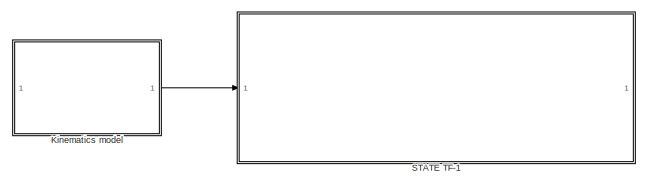
[diagram: root canvas - part 1/4, top right region]
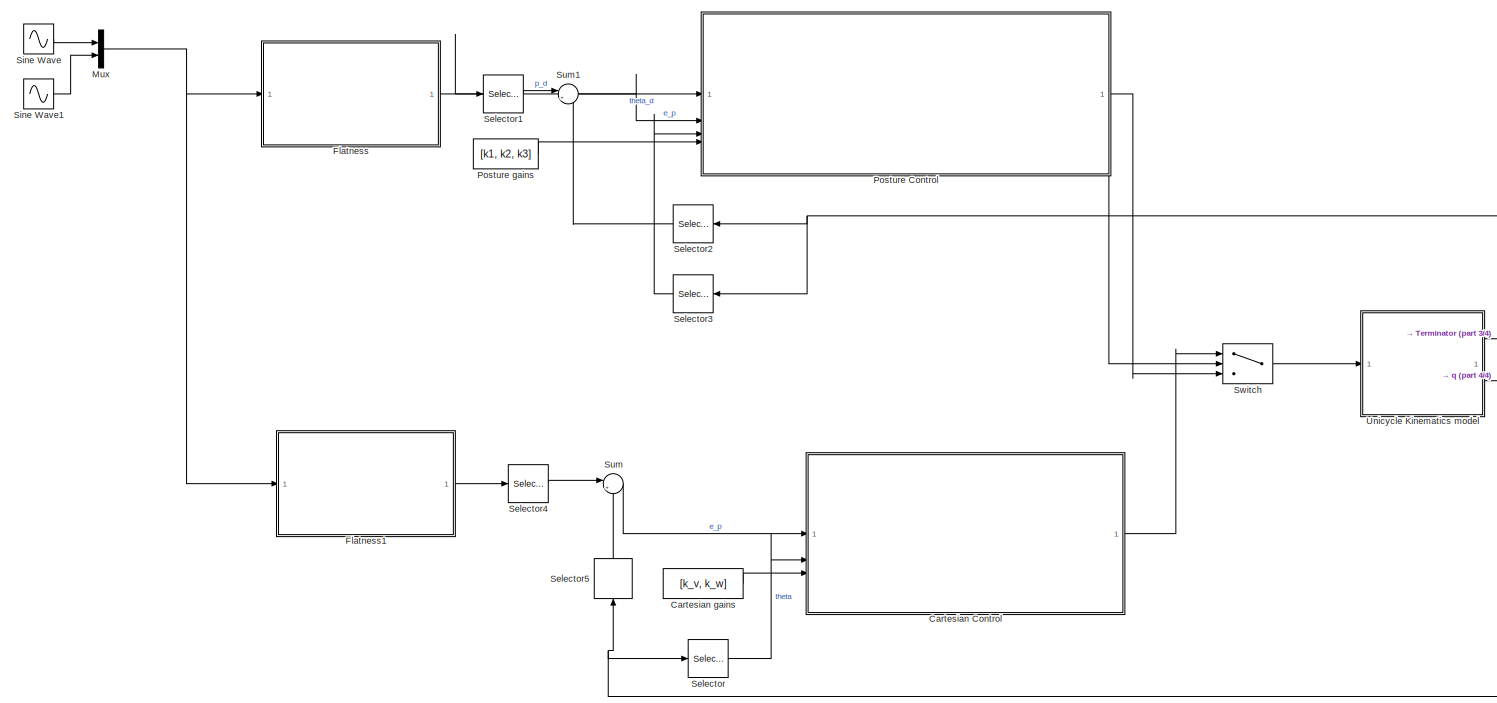
[diagram: root canvas - part 2/4, left side, full height]
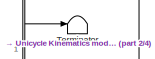
[diagram: root canvas - part 3/4, central region]
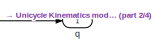
[diagram: root canvas - part 4/4, middle right region]
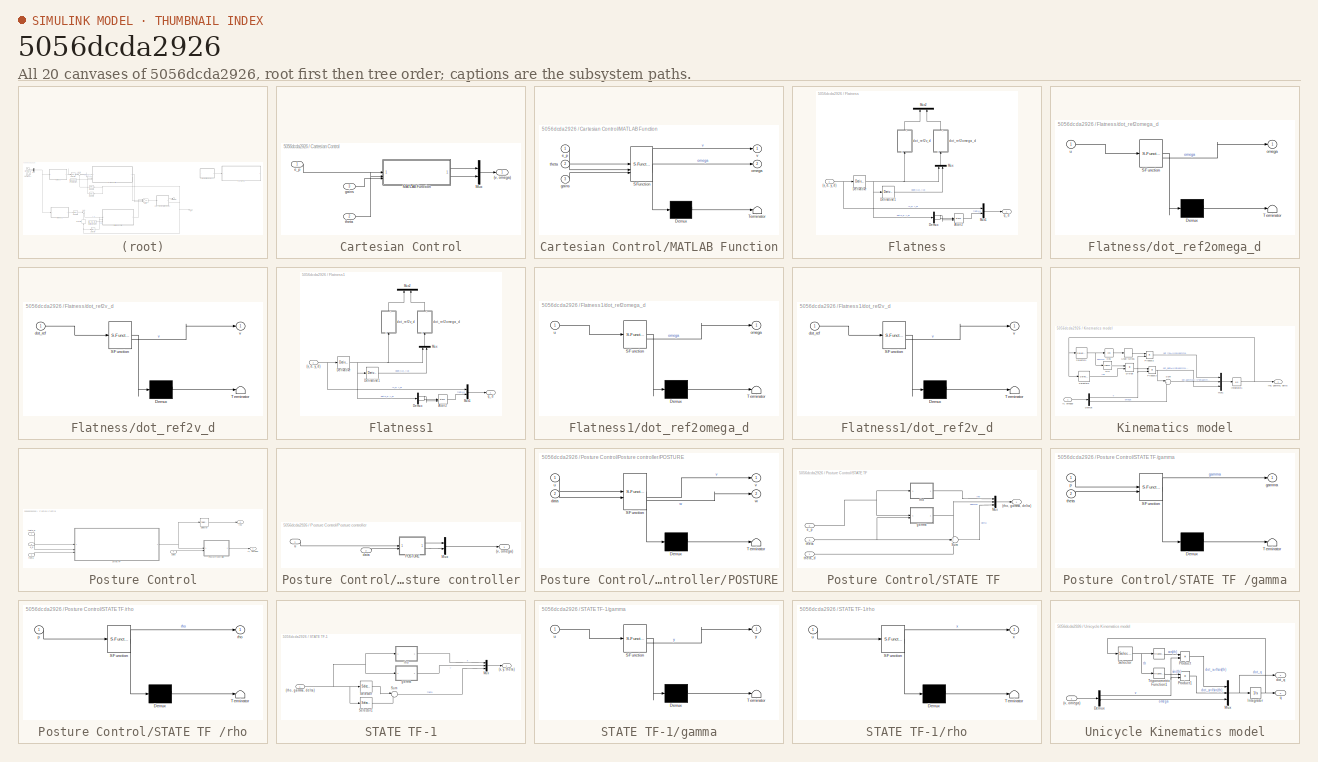
[diagram: thumbnail index - all 20 canvases of the model, root first then tree order]
MODEL slx_5056dcda2926
KIND model
CONFIG AbsTol = auto
CONFIG EnableMultiTasking = off
CONFIG FixedStep = auto
CONFIG MaxStep = auto
CONFIG MinStep = auto
CONFIG RelTol = 1e-3
CONFIG SampleTimeConstraint = Unconstrained
CONFIG SolverName = VariableStepAuto
CONFIG StartTime = 0.0
CONFIG StopTime = 10.0
BLOCK [SubSystem] Cartesian Control
BLOCK [Outport] Cartesian Control/(v, omega)
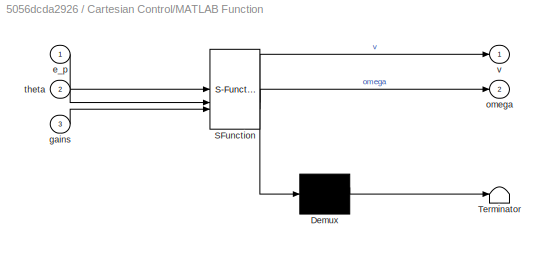
BLOCK [SubSystem] Cartesian Control/MATLAB Function
  ErrorFcn = Stateflow.Translate.translate
  PermitHierarchicalResolution = ExplicitOnly
  SFBlockType = MATLAB Function
  TreatAsAtomicUnit = on
BLOCK [Demux] Cartesian Control/MATLAB Function/ Demux 
  Outputs = 1
BLOCK [S-Function] Cartesian Control/MATLAB Function/ SFunction 
  EnableBusSupport = on
  FunctionName = sf_sfun
  PortCounts = [3 3]
  SFcnIsStateOwnerBlock = off
  SFunctionDeploymentMode = off
  Tag = Stateflow S-Function 10
BLOCK [Terminator] Cartesian Control/MATLAB Function/ Terminator 
BLOCK [Inport] Cartesian Control/MATLAB Function/e_p
BLOCK [Inport] Cartesian Control/MATLAB Function/gains
  Port = 3
BLOCK [Outport] Cartesian Control/MATLAB Function/omega
  Port = 2
BLOCK [Inport] Cartesian Control/MATLAB Function/theta
  Port = 2
BLOCK [Outport] Cartesian Control/MATLAB Function/v
BLOCK [Mux] Cartesian Control/Mux
  DisplayOption = bar
  Inputs = 2
BLOCK [Inport] Cartesian Control/e_p
BLOCK [Inport] Cartesian Control/gains
  Port = 3
BLOCK [Inport] Cartesian Control/theta
  Port = 2
BLOCK [Constant] Cartesian gains
  Value = [k_v, k_w]
BLOCK [SubSystem] Flatness
BLOCK [Inport] Flatness/(x_d, y_d)
BLOCK [Trigonometry] Flatness/Atan2
  Operator = atan2
BLOCK [Demux] Flatness/Demux
  Outputs = 2
BLOCK [Derivative] Flatness/Derivative
BLOCK [Derivative] Flatness/Derivative1
BLOCK [Mux] Flatness/Mux
  DisplayOption = bar
  Inputs = 2
  NameLocation = right
BLOCK [Mux] Flatness/Mux1
  DisplayOption = bar
  Inputs = 2
BLOCK [Mux] Flatness/Mux2
  DisplayOption = bar
  Inputs = 2
  NameLocation = right
BLOCK [SubSystem] Flatness/dot_ref2omega_d
  ErrorFcn = Stateflow.Translate.translate
  NameLocation = right
  PermitHierarchicalResolution = ExplicitOnly
  SFBlockType = MATLAB Function
  TreatAsAtomicUnit = on
BLOCK [Demux] Flatness/dot_ref2omega_d/ Demux 
  Outputs = 1
BLOCK [S-Function] Flatness/dot_ref2omega_d/ SFunction 
  EnableBusSupport = on
  FunctionName = sf_sfun
  PortCounts = [1 2]
  SFcnIsStateOwnerBlock = off
  SFunctionDeploymentMode = off
  Tag = Stateflow S-Function 6
BLOCK [Terminator] Flatness/dot_ref2omega_d/ Terminator 
BLOCK [Outport] Flatness/dot_ref2omega_d/omega
BLOCK [Inport] Flatness/dot_ref2omega_d/u
BLOCK [SubSystem] Flatness/dot_ref2v_d
  ErrorFcn = Stateflow.Translate.translate
  NameLocation = right
  PermitHierarchicalResolution = ExplicitOnly
  SFBlockType = MATLAB Function
  TreatAsAtomicUnit = on
BLOCK [Demux] Flatness/dot_ref2v_d/ Demux 
  Outputs = 1
BLOCK [S-Function] Flatness/dot_ref2v_d/ SFunction 
  EnableBusSupport = on
  FunctionName = sf_sfun
  PortCounts = [1 2]
  SFcnIsStateOwnerBlock = off
  SFunctionDeploymentMode = off
  Tag = Stateflow S-Function 7
BLOCK [Terminator] Flatness/dot_ref2v_d/ Terminator 
BLOCK [Inport] Flatness/dot_ref2v_d/dot_ref
BLOCK [Outport] Flatness/dot_ref2v_d/v
BLOCK [Outport] Flatness/q_d
BLOCK [SubSystem] Flatness1
BLOCK [Inport] Flatness1/(x_d, y_d)
BLOCK [Trigonometry] Flatness1/Atan2
  Operator = atan2
BLOCK [Demux] Flatness1/Demux
  Outputs = 2
BLOCK [Derivative] Flatness1/Derivative
BLOCK [Derivative] Flatness1/Derivative1
BLOCK [Mux] Flatness1/Mux
  DisplayOption = bar
  Inputs = 2
  NameLocation = right
BLOCK [Mux] Flatness1/Mux1
  DisplayOption = bar
  Inputs = 2
BLOCK [Mux] Flatness1/Mux2
  DisplayOption = bar
  Inputs = 2
  NameLocation = right
BLOCK [SubSystem] Flatness1/dot_ref2omega_d
  ErrorFcn = Stateflow.Translate.translate
  NameLocation = right
  PermitHierarchicalResolution = ExplicitOnly
  SFBlockType = MATLAB Function
  TreatAsAtomicUnit = on
BLOCK [Demux] Flatness1/dot_ref2omega_d/ Demux 
  Outputs = 1
BLOCK [S-Function] Flatness1/dot_ref2omega_d/ SFunction 
  EnableBusSupport = on
  FunctionName = sf_sfun
  PortCounts = [1 2]
  SFcnIsStateOwnerBlock = off
  SFunctionDeploymentMode = off
  Tag = Stateflow S-Function 8
BLOCK [Terminator] Flatness1/dot_ref2omega_d/ Terminator 
BLOCK [Outport] Flatness1/dot_ref2omega_d/omega
BLOCK [Inport] Flatness1/dot_ref2omega_d/u
BLOCK [SubSystem] Flatness1/dot_ref2v_d
  ErrorFcn = Stateflow.Translate.translate
  NameLocation = right
  PermitHierarchicalResolution = ExplicitOnly
  SFBlockType = MATLAB Function
  TreatAsAtomicUnit = on
BLOCK [Demux] Flatness1/dot_ref2v_d/ Demux 
  Outputs = 1
BLOCK [S-Function] Flatness1/dot_ref2v_d/ SFunction 
  EnableBusSupport = on
  FunctionName = sf_sfun
  PortCounts = [1 2]
  SFcnIsStateOwnerBlock = off
  SFunctionDeploymentMode = off
  Tag = Stateflow S-Function 9
BLOCK [Terminator] Flatness1/dot_ref2v_d/ Terminator 
BLOCK [Inport] Flatness1/dot_ref2v_d/dot_ref
BLOCK [Outport] Flatness1/dot_ref2v_d/v
BLOCK [Outport] Flatness1/q_d
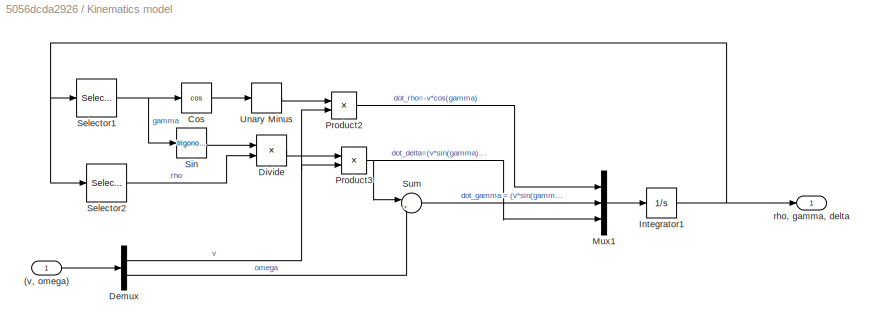
BLOCK [SubSystem] Kinematics model
  Commented = through
BLOCK [Inport] Kinematics model/(v, omega)
BLOCK [Trigonometry] Kinematics model/Cos
  Operator = cos
BLOCK [Demux] Kinematics model/Demux
  Outputs = 2
BLOCK [Product] Kinematics model/Divide
  Inputs = */
BLOCK [Integrator] Kinematics model/Integrator1
BLOCK [Mux] Kinematics model/Mux1
  DisplayOption = bar
  Inputs = 3
BLOCK [Product] Kinematics model/Product2
BLOCK [Product] Kinematics model/Product3
BLOCK [Selector] Kinematics model/Selector1
  IndexOptions = Index vector (dialog)
  Indices = [2]
  InputPortWidth = 3
  OutputSizes = 1
BLOCK [Selector] Kinematics model/Selector2
  IndexOptions = Index vector (dialog)
  Indices = [1]
  InputPortWidth = 3
  OutputSizes = 1
BLOCK [Trigonometry] Kinematics model/Sin
BLOCK [Sum] Kinematics model/Sum
  Inputs = |+-
BLOCK [UnaryMinus] Kinematics model/Unary Minus
BLOCK [Outport] Kinematics model/rho, gamma, delta
BLOCK [Mux] Mux
  DisplayOption = bar
  Inputs = 2
BLOCK [SubSystem] Posture Control
  PortSchema = {"entries":[{"content":{"sides":[{"content":{"connectorIds":["In1","In2","In3","In4"]},"type":"ConnectorPlacement.EquallySpacedRectSide","uuid":"0ff96605-7dc6-4516-a6a0-f1bebb17baca"},{"content":{"connectorIds":["Out1"],"side":"RIGHT"},"type":"ConnectorPlacement.EquallySpacedRectSide","uuid":"c0f9f8c1-94bc-447e-8fdd-7fb218398eda"},{"content":{"side":"TOP"},"type":"ConnectorPlacement.EquallySpacedR...<+390ch>
BLOCK [Outport] Posture Control/(v, omega)
BLOCK [SubSystem] Posture Control/Posture controller
BLOCK [Outport] Posture Control/Posture controller/(v, omega)
BLOCK [Mux] Posture Control/Posture controller/Mux
  DisplayOption = bar
  Inputs = 2
BLOCK [SubSystem] Posture Control/Posture controller/POSTURE
  ErrorFcn = Stateflow.Translate.translate
  PermitHierarchicalResolution = ExplicitOnly
  SFBlockType = MATLAB Function
  TreatAsAtomicUnit = on
BLOCK [Demux] Posture Control/Posture controller/POSTURE/ Demux 
  Outputs = 1
BLOCK [S-Function] Posture Control/Posture controller/POSTURE/ SFunction 
  EnableBusSupport = on
  FunctionName = sf_sfun
  PortCounts = [2 3]
  SFcnIsStateOwnerBlock = off
  SFunctionDeploymentMode = off
  Tag = Stateflow S-Function 4
BLOCK [Terminator] Posture Control/Posture controller/POSTURE/ Terminator 
BLOCK [Inport] Posture Control/Posture controller/POSTURE/data
  Port = 2
BLOCK [Inport] Posture Control/Posture controller/POSTURE/u
BLOCK [Outport] Posture Control/Posture controller/POSTURE/v
BLOCK [Outport] Posture Control/Posture controller/POSTURE/w
  Port = 2
BLOCK [Inport] Posture Control/Posture controller/data
  Port = 2
BLOCK [Inport] Posture Control/Posture controller/u
BLOCK [SubSystem] Posture Control/STATE TF 
BLOCK [Outport] Posture Control/STATE TF /(rho, gamma, delta)
BLOCK [Mux] Posture Control/STATE TF /Mux
  DisplayOption = bar
  Inputs = 3
BLOCK [Sum] Posture Control/STATE TF /Sum
  Inputs = ++-
BLOCK [Inport] Posture Control/STATE TF /e_p
  Port = 2
  PortDimensions = 3
BLOCK [SubSystem] Posture Control/STATE TF /gamma
  ErrorFcn = Stateflow.Translate.translate
  PermitHierarchicalResolution = ExplicitOnly
  SFBlockType = MATLAB Function
  TreatAsAtomicUnit = on
BLOCK [Demux] Posture Control/STATE TF /gamma/ Demux 
  Outputs = 1
BLOCK [S-Function] Posture Control/STATE TF /gamma/ SFunction 
  EnableBusSupport = on
  FunctionName = sf_sfun
  PortCounts = [2 2]
  SFcnIsStateOwnerBlock = off
  SFunctionDeploymentMode = off
  Tag = Stateflow S-Function 1
BLOCK [Terminator] Posture Control/STATE TF /gamma/ Terminator 
BLOCK [Outport] Posture Control/STATE TF /gamma/gamma
BLOCK [Inport] Posture Control/STATE TF /gamma/p
BLOCK [Inport] Posture Control/STATE TF /gamma/theta
  Port = 2
BLOCK [SubSystem] Posture Control/STATE TF /rho
  ErrorFcn = Stateflow.Translate.translate
  PermitHierarchicalResolution = ExplicitOnly
  SFBlockType = MATLAB Function
  TreatAsAtomicUnit = on
BLOCK [Demux] Posture Control/STATE TF /rho/ Demux 
  Outputs = 1
BLOCK [S-Function] Posture Control/STATE TF /rho/ SFunction 
  EnableBusSupport = on
  FunctionName = sf_sfun
  PortCounts = [1 2]
  SFcnIsStateOwnerBlock = off
  SFunctionDeploymentMode = off
  Tag = Stateflow S-Function 2
BLOCK [Terminator] Posture Control/STATE TF /rho/ Terminator 
BLOCK [Inport] Posture Control/STATE TF /rho/p
BLOCK [Outport] Posture Control/STATE TF /rho/rho
BLOCK [Inport] Posture Control/STATE TF /theta
  Port = 3
BLOCK [Inport] Posture Control/STATE TF /theta_d
BLOCK [Selector] Posture Control/Selector
  IndexOptions = Index vector (dialog)
  Indices = [1]
  InputPortWidth = 3
  OutputSizes = 1
BLOCK [Inport] Posture Control/e_p
  Port = 2
BLOCK [Inport] Posture Control/gains
  Port = 4
BLOCK [Outport] Posture Control/rho
  Port = 2
BLOCK [Inport] Posture Control/theta
  Port = 3
BLOCK [Inport] Posture Control/theta_d
BLOCK [Constant] Posture gains
  Value = [k1, k2, k3]
BLOCK [SubSystem] STATE TF-1
  Commented = through
BLOCK [Inport] STATE TF-1/(rho, gamma, delta)
BLOCK [Outport] STATE TF-1/(x, y, theta)
BLOCK [Mux] STATE TF-1/Mux
  DisplayOption = bar
  Inputs = 3
BLOCK [Selector] STATE TF-1/Selector
  IndexOptions = Index vector (dialog)
  Indices = [2]
  InputPortWidth = 3
  OutputSizes = 1
BLOCK [Selector] STATE TF-1/Selector1
  IndexOptions = Index vector (dialog)
  Indices = [3]
  InputPortWidth = 3
  OutputSizes = 1
BLOCK [Sum] STATE TF-1/Sum
  Inputs = |-+
BLOCK [SubSystem] STATE TF-1/gamma
  ErrorFcn = Stateflow.Translate.translate
  PermitHierarchicalResolution = ExplicitOnly
  SFBlockType = MATLAB Function
  TreatAsAtomicUnit = on
BLOCK [Demux] STATE TF-1/gamma/ Demux 
  Outputs = 1
BLOCK [S-Function] STATE TF-1/gamma/ SFunction 
  EnableBusSupport = off
  FunctionName = sf_sfun
  PortCounts = [1 2]
  SFcnIsStateOwnerBlock = off
  SFunctionDeploymentMode = off
  Tag = Stateflow S-Function 3
BLOCK [Terminator] STATE TF-1/gamma/ Terminator 
BLOCK [Inport] STATE TF-1/gamma/u
BLOCK [Outport] STATE TF-1/gamma/y
BLOCK [SubSystem] STATE TF-1/rho
  ErrorFcn = Stateflow.Translate.translate
  PermitHierarchicalResolution = ExplicitOnly
  SFBlockType = MATLAB Function
  TreatAsAtomicUnit = on
BLOCK [Demux] STATE TF-1/rho/ Demux 
  Outputs = 1
BLOCK [S-Function] STATE TF-1/rho/ SFunction 
  EnableBusSupport = off
  FunctionName = sf_sfun
  PortCounts = [1 2]
  SFcnIsStateOwnerBlock = off
  SFunctionDeploymentMode = off
  Tag = Stateflow S-Function 5
BLOCK [Terminator] STATE TF-1/rho/ Terminator 
BLOCK [Inport] STATE TF-1/rho/u
BLOCK [Outport] STATE TF-1/rho/x
BLOCK [Selector] Selector
  IndexOptions = Index vector (dialog)
  Indices = [3]
  InputPortWidth = 3
  OutputSizes = 1
BLOCK [Selector] Selector1
  IndexOptions = Index vector (dialog)
  Indices = [1 2]
  InputPortWidth = 3
  OutputSizes = 1
BLOCK [Selector] Selector2
  IndexOptions = Index vector (dialog)
  Indices = [1 2]
  InputPortWidth = 3
  OutputSizes = 1
BLOCK [Selector] Selector3
  IndexOptions = Index vector (dialog)
  Indices = [3]
  InputPortWidth = 3
  OutputSizes = 1
BLOCK [Selector] Selector4
  IndexOptions = Index vector (dialog)
  Indices = [1 2]
  InputPortWidth = 3
  OutputSizes = 1
BLOCK [Selector] Selector5
  IndexOptions = Index vector (dialog)
  Indices = [1 2]
  InputPortWidth = 3
  NameLocation = right
  OutputSizes = 1
BLOCK [Sin] Sine Wave
  SampleTime = 0
BLOCK [Sin] Sine Wave1
  SampleTime = 0
BLOCK [Sum] Sum
  Inputs = |+-
BLOCK [Sum] Sum1
  Inputs = |+-
BLOCK [Switch] Switch
  Criteria = u2 > Threshold
  InputSameDT = off
  SaturateOnIntegerOverflow = off
  Threshold = 0.1
BLOCK [Terminator] Terminator
BLOCK [SubSystem] Unicycle Kinematics model
BLOCK [Trigonometry] Unicycle Kinematics model/ 
BLOCK [Inport] Unicycle Kinematics model/(v, omega)
BLOCK [Demux] Unicycle Kinematics model/Demux
  Outputs = 2
BLOCK [Integrator] Unicycle Kinematics model/Integrator
BLOCK [Mux] Unicycle Kinematics model/Mux
  DisplayOption = bar
  Inputs = 3
BLOCK [Product] Unicycle Kinematics model/Product
BLOCK [Product] Unicycle Kinematics model/Product1
BLOCK [Selector] Unicycle Kinematics model/Selector
  IndexOptions = Index vector (dialog)
  Indices = [3]
  InputPortWidth = 3
  OutputSizes = 1
BLOCK [Trigonometry] Unicycle Kinematics model/Trigonometric Function1
BLOCK [Outport] Unicycle Kinematics model/dot_q
BLOCK [Outport] Unicycle Kinematics model/q
  Port = 2
BLOCK [Outport] q
LINE Cartesian Control/MATLAB Function:1 -> Cartesian Control/Mux:1
LINE Cartesian Control/MATLAB Function:2 -> Cartesian Control/Mux:2
LINE Cartesian Control/Mux:1 -> Cartesian Control/(v, omega):1
LINE Cartesian Control/e_p:1 -> Cartesian Control/MATLAB Function:1
LINE Cartesian Control/gains:1 -> Cartesian Control/MATLAB Function:3
LINE Cartesian Control/theta:1 -> Cartesian Control/MATLAB Function:2
LINE Cartesian Control:1 -> Switch:1
LINE Cartesian gains:1 -> Cartesian Control:3
NET Flatness/(x_d, y_d):1 -> Flatness/Derivative:1, Flatness/Mux1:1
LINE Flatness/Atan2:1 -> Flatness/Mux1:2
LINE Flatness/Demux:1 -> Flatness/Atan2:2
LINE Flatness/Demux:2 -> Flatness/Atan2:1
LINE Flatness/Derivative1:1 -> Flatness/Mux:2
NET Flatness/Derivative:1 -> Flatness/Demux:1, Flatness/Derivative1:1, Flatness/Mux:1, Flatness/dot_ref2v_d:1
LINE Flatness/Mux1:1 -> Flatness/q_d:1
LINE Flatness/Mux:1 -> Flatness/dot_ref2omega_d:1
LINE Flatness/dot_ref2omega_d:1 -> Flatness/Mux2:2
LINE Flatness/dot_ref2v_d:1 -> Flatness/Mux2:1
NET Flatness1/(x_d, y_d):1 -> Flatness1/Derivative:1, Flatness1/Mux1:1
LINE Flatness1/Atan2:1 -> Flatness1/Mux1:2
LINE Flatness1/Demux:1 -> Flatness1/Atan2:2
LINE Flatness1/Demux:2 -> Flatness1/Atan2:1
LINE Flatness1/Derivative1:1 -> Flatness1/Mux:2
NET Flatness1/Derivative:1 -> Flatness1/Demux:1, Flatness1/Derivative1:1, Flatness1/Mux:1, Flatness1/dot_ref2v_d:1
LINE Flatness1/Mux1:1 -> Flatness1/q_d:1
LINE Flatness1/Mux:1 -> Flatness1/dot_ref2omega_d:1
LINE Flatness1/dot_ref2omega_d:1 -> Flatness1/Mux2:2
LINE Flatness1/dot_ref2v_d:1 -> Flatness1/Mux2:1
LINE Flatness1:1 -> Selector4:1
NET Flatness:1 -> Posture Control:1, Selector1:1
LINE Kinematics model/(v, omega):1 -> Kinematics model/Demux:1
LINE Kinematics model/Cos:1 -> Kinematics model/Unary Minus:1
NET Kinematics model/Demux:1 -> Kinematics model/Product2:2, Kinematics model/Product3:2
LINE Kinematics model/Demux:2 -> Kinematics model/Sum:2
LINE Kinematics model/Divide:1 -> Kinematics model/Product3:1
NET Kinematics model/Integrator1:1 -> Kinematics model/Selector1:1, Kinematics model/Selector2:1, Kinematics model/rho, gamma, delta:1
LINE Kinematics model/Mux1:1 -> Kinematics model/Integrator1:1
LINE Kinematics model/Product2:1 -> Kinematics model/Mux1:1
NET Kinematics model/Product3:1 -> Kinematics model/Mux1:3, Kinematics model/Sum:1
NET Kinematics model/Selector1:1 -> Kinematics model/Cos:1, Kinematics model/Sin:1
LINE Kinematics model/Selector2:1 -> Kinematics model/Divide:2
LINE Kinematics model/Sin:1 -> Kinematics model/Divide:1
LINE Kinematics model/Sum:1 -> Kinematics model/Mux1:2
LINE Kinematics model/Unary Minus:1 -> Kinematics model/Product2:1
LINE Kinematics model:1 -> STATE TF-1:1
NET Mux:1 -> Flatness1:1, Flatness:1
LINE Posture Control/Posture controller/Mux:1 -> Posture Control/Posture controller/(v, omega):1
LINE Posture Control/Posture controller/POSTURE:1 -> Posture Control/Posture controller/Mux:1
LINE Posture Control/Posture controller/POSTURE:2 -> Posture Control/Posture controller/Mux:2
LINE Posture Control/Posture controller/data:1 -> Posture Control/Posture controller/POSTURE:2
LINE Posture Control/Posture controller/u:1 -> Posture Control/Posture controller/POSTURE:1
LINE Posture Control/Posture controller:1 -> Posture Control/(v, omega):1
LINE Posture Control/STATE TF /Mux:1 -> Posture Control/STATE TF /(rho, gamma, delta):1
LINE Posture Control/STATE TF /Sum:1 -> Posture Control/STATE TF /Mux:3
NET Posture Control/STATE TF /e_p:1 -> Posture Control/STATE TF /gamma:1, Posture Control/STATE TF /rho:1
NET Posture Control/STATE TF /gamma:1 -> Posture Control/STATE TF /Mux:2, Posture Control/STATE TF /Sum:1
LINE Posture Control/STATE TF /rho:1 -> Posture Control/STATE TF /Mux:1
NET Posture Control/STATE TF /theta:1 -> Posture Control/STATE TF /Sum:2, Posture Control/STATE TF /gamma:2
LINE Posture Control/STATE TF /theta_d:1 -> Posture Control/STATE TF /Sum:3
NET Posture Control/STATE TF :1 -> Posture Control/Posture controller:1, Posture Control/Selector:1
LINE Posture Control/Selector:1 -> Posture Control/rho:1
LINE Posture Control/e_p:1 -> Posture Control/STATE TF :2
LINE Posture Control/gains:1 -> Posture Control/Posture controller:2
LINE Posture Control/theta:1 -> Posture Control/STATE TF :3
LINE Posture Control/theta_d:1 -> Posture Control/STATE TF :1
LINE Posture Control:1 -> Switch:3
LINE Posture Control:2 -> Switch:2
LINE Posture gains:1 -> Posture Control:4
NET STATE TF-1/(rho, gamma, delta):1 -> STATE TF-1/Selector1:1, STATE TF-1/Selector:1, STATE TF-1/gamma:1, STATE TF-1/rho:1
LINE STATE TF-1/Mux:1 -> STATE TF-1/(x, y, theta):1
LINE STATE TF-1/Selector1:1 -> STATE TF-1/Sum:2
LINE STATE TF-1/Selector:1 -> STATE TF-1/Sum:1
LINE STATE TF-1/Sum:1 -> STATE TF-1/Mux:3
LINE STATE TF-1/gamma:1 -> STATE TF-1/Mux:2
LINE STATE TF-1/rho:1 -> STATE TF-1/Mux:1
LINE Selector1:1 -> Sum1:1
LINE Selector2:1 -> Sum1:2
LINE Selector3:1 -> Posture Control:3
LINE Selector4:1 -> Sum:1
LINE Selector5:1 -> Sum:2
LINE Selector:1 -> Cartesian Control:2
LINE Sine Wave1:1 -> Mux:2
LINE Sine Wave:1 -> Mux:1
LINE Sum1:1 -> Posture Control:2
LINE Sum:1 -> Cartesian Control:1
LINE Switch:1 -> Unicycle Kinematics model:1
LINE Unicycle Kinematics model/ :1 -> Unicycle Kinematics model/Product:1
LINE Unicycle Kinematics model/(v, omega):1 -> Unicycle Kinematics model/Demux:1
NET Unicycle Kinematics model/Demux:1 -> Unicycle Kinematics model/Product1:2, Unicycle Kinematics model/Product:2
LINE Unicycle Kinematics model/Demux:2 -> Unicycle Kinematics model/Mux:3
NET Unicycle Kinematics model/Integrator:1 -> Unicycle Kinematics model/Selector:1, Unicycle Kinematics model/q:1
NET Unicycle Kinematics model/Mux:1 -> Unicycle Kinematics model/Integrator:1, Unicycle Kinematics model/dot_q:1
LINE Unicycle Kinematics model/Product1:1 -> Unicycle Kinematics model/Mux:2
LINE Unicycle Kinematics model/Product:1 -> Unicycle Kinematics model/Mux:1
NET Unicycle Kinematics model/Selector:1 -> Unicycle Kinematics model/ :1, Unicycle Kinematics model/Trigonometric Function1:1
LINE Unicycle Kinematics model/Trigonometric Function1:1 -> Unicycle Kinematics model/Product1:1
LINE Unicycle Kinematics model:1 -> Terminator:1
NET Unicycle Kinematics model:2 -> Selector2:1, Selector3:1, Selector5:1, Selector:1, q:1
note: NET lines group one-source signal fan-out (src -> all destinations, sorted); 1:1 wires keep LINE
CHART Posture Control/STATE TF /gamma states=1 transitions=1
  STATE_LABEL 'eML_blk_kernel()'
  STATE_LABEL 'SCRIPT:\nfunction gamma = fcn(p, theta)\n\ne_x = p(1);\ne_y = p(2);\n\ngamma = atan2(e_y,e_x) + pi - theta;\n'
CHART Posture Control/STATE TF /rho states=1 transitions=1
  STATE_LABEL 'eML_blk_kernel()'
  STATE_LABEL 'SCRIPT:\nfunction rho = fcn(p)\n\ne_x = p(1);\ne_y = p(2);\n\n\nrho = sqrt(e_x^2 + e_y^2);\n'
CHART STATE TF-1/gamma states=1 transitions=1
  STATE_LABEL 'eML_blk_kernel()'
  STATE_LABEL 'SCRIPT:\nfunction y = fcn(u)\n\nrho = u(1);\ndelta = u(3);\n\ny = - rho * sin(delta);\n'
CHART Posture Control/Posture controller/POSTURE states=1 transitions=1
  STATE_LABEL 'eML_blk_kernel()'
  STATE_LABEL 'SCRIPT:\nfunction [v,w]= fcn(u, data)\n\nK1 = data(1);\nK2 = data(2);\nK3 = data(3);\n\nrho = u(1);\ngamma = u(2);\ndelta = u(3);\n\nv = K1 * rho * cos(gamma);\nw = K2 * gamma + K1 * ((sin(gamma)*cos(gamma))/gamma) * (gamma + (K3 * delta));\n\n'
CHART STATE TF-1/rho states=1 transitions=1
  STATE_LABEL 'eML_blk_kernel()'
  STATE_LABEL 'SCRIPT:\nfunction x = fcn(u)\n\nrho = u(1);\ndelta = u(3);\n\nx = - rho * cos(delta);\n\n'
CHART Flatness/dot_ref2omega_d states=1 transitions=1
  STATE_LABEL 'eML_blk_kernel()'
  STATE_LABEL 'SCRIPT:\nfunction omega = fcn(u)\n    dot_x = u(1);\n    dot_y = u(2);\n    ddot_x = u(3);\n    ddot_y = u(4);\n\n    omega = (dot_x*ddot_y - dot_y*ddot_x) / (dot_x^2 + dot_y^2);'
CHART Flatness/dot_ref2v_d states=1 transitions=1
  STATE_LABEL 'eML_blk_kernel()'
  STATE_LABEL 'SCRIPT:\nfunction v = fcn(dot_ref)\n    dot_x = dot_ref(1);\n    dot_y = dot_ref(2);\n\n    v = sqrt(dot_x^2 + dot_y^2);\n'
CHART Flatness1/dot_ref2omega_d states=1 transitions=1
  STATE_LABEL 'eML_blk_kernel()'
  STATE_LABEL 'SCRIPT:\nfunction omega = fcn(u)\n    dot_x = u(1);\n    dot_y = u(2);\n    ddot_x = u(3);\n    ddot_y = u(4);\n\n    omega = (dot_x*ddot_y - dot_y*ddot_x) / (dot_x^2 + dot_y^2);'
CHART Flatness1/dot_ref2v_d states=1 transitions=1
  STATE_LABEL 'eML_blk_kernel()'
  STATE_LABEL 'SCRIPT:\nfunction v = fcn(dot_ref)\n    dot_x = dot_ref(1);\n    dot_y = dot_ref(2);\n\n    v = sqrt(dot_x^2 + dot_y^2);\n'
CHART Cartesian Control/MATLAB Function states=1 transitions=1
  STATE_LABEL 'eML_blk_kernel()'
  STATE_LABEL "SCRIPT:\nfunction [v, omega] = cartesian_control(e_p, theta, gains)\n\nx_e = e_p(1);\ny_e = e_p(2);\n\nkv = gains(1);\nkw = gains(2);\n\n% CARTESIAN_CONTROL\n% Obiettivo: Portare il robot all'origine (0,0) ignorando l'orientamento finale.\n    \n% gamma è l'angolo tra il vettore errore e l'asse sagittale del robot.\n% Formula: gamma = atan2(y, x) + pi - theta   \ngamma = atan2(y_e, x_e) + pi - theta;\n    \n% IMP...<+604ch>"
CHART  states=0 transitions=0
CHART  states=0 transitions=0
CHART  states=0 transitions=0
CHART  states=0 transitions=0
CHART  states=0 transitions=0
CHART  states=0 transitions=0
CHART  states=0 transitions=0
CHART  states=0 transitions=0
CHART  states=0 transitions=0
CHART  states=0 transitions=0
